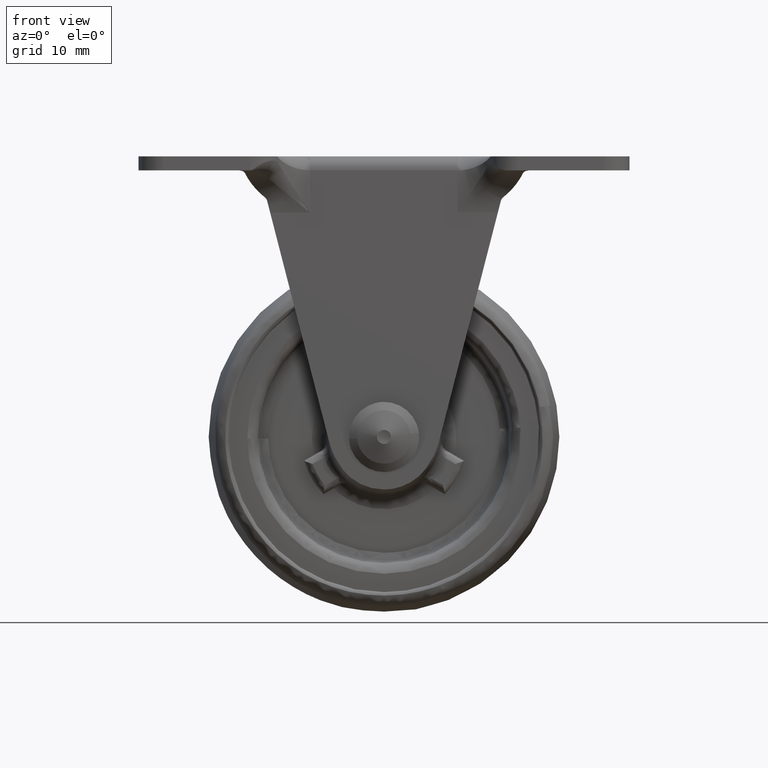
[diagram: clean part render]
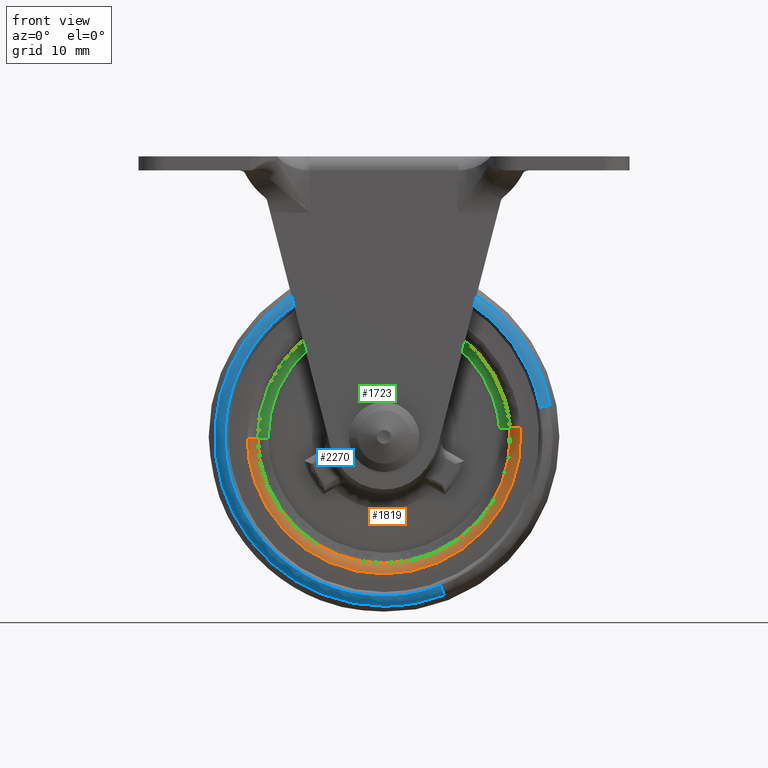
[diagram: same view with three faces highlighted in distinct colors, each labeled with its STEP entity id]
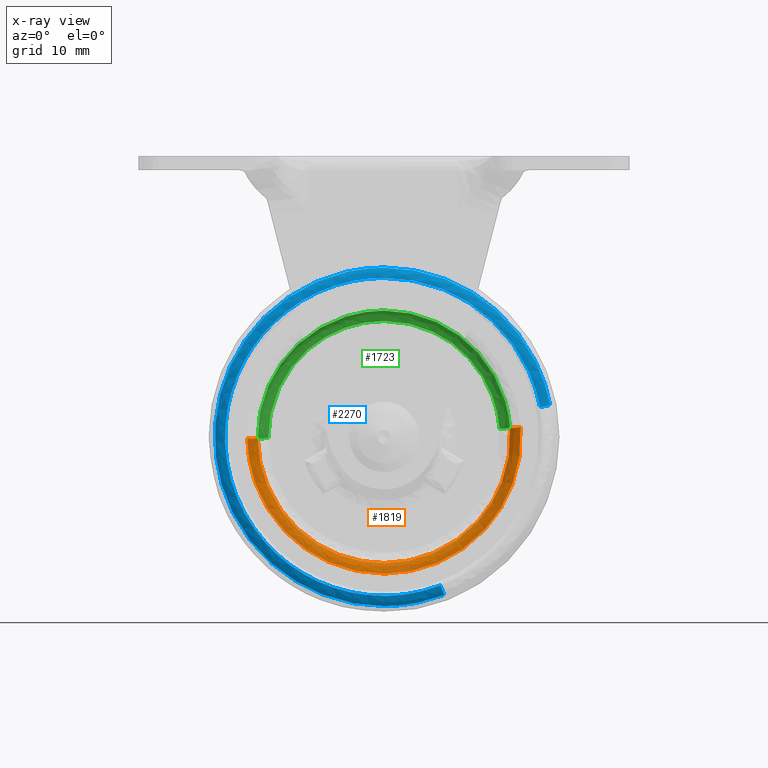
[diagram: x-ray of the same camera — body ghosted, the three highlighted faces saturated]
A machine part, front view with three faces highlighted in distinct colors.
The next image is the same camera in x-ray (body ghosted, the three faces saturated) — at least one of them is partly hidden behind the body in this view.
Their STEP definitions:

[orange] entity #1819 — the highlighted face is a freeform B-spline surface patch.
#561=CARTESIAN_POINT('',(-7.510837562892252,-8.500000000000000,-50.434197652740728));
#562=VERTEX_POINT('',#561);
#568=CARTESIAN_POINT('',(-3.033219733155585,-8.500000000381135,-37.244060625545167));
#569=VERTEX_POINT('',#568);
#570=CARTESIAN_POINT('',(-3.033219733155585,-8.500000000381135,-37.244060625545174));
#571=CARTESIAN_POINT('',(-2.989376000000002,-8.500000000000002,-37.871265039775892));
#572=CARTESIAN_POINT('',(-2.989376000000002,-8.500000000000000,-38.500000000000000));
#573=CARTESIAN_POINT('',(-2.989376000000003,-8.500000000000002,-45.323612823355205));
#574=CARTESIAN_POINT('',(-7.510837562892252,-8.500000000000000,-50.434197652740728));
#582=(BOUNDED_CURVE()B_SPLINE_CURVE(2,(#570,#571,#572,#573,#574),.UNSPECIFIED.,.F.,.U.)B_SPLINE_CURVE_WITH_KNOTS((3,2,3),(0.237833686534520,0.250000000000000,0.365779855696172),.UNSPECIFIED.)CURVE()GEOMETRIC_REPRESENTATION_ITEM()RATIONAL_B_SPLINE_CURVE((0.972879876385766,0.985746277152008,1.0,0.864355461565564,0.854350163818431))REPRESENTATION_ITEM(''));
#583=EDGE_CURVE('',#569,#562,#582,.T.);
#600=CARTESIAN_POINT('',(-39.009201956841181,-8.500000000366907,-38.726322219597343));
#601=VERTEX_POINT('',#600);
#617=CARTESIAN_POINT('',(-30.396642989575760,-8.500000000054582,-53.865079804399592));
#618=VERTEX_POINT('',#617);
#619=CARTESIAN_POINT('',(-30.396642989575760,-8.500000000054582,-53.865079804399585));
#620=CARTESIAN_POINT('',(-38.884183471675357,-8.500000000161668,-48.674453476027210));
#621=CARTESIAN_POINT('',(-39.009201956841189,-8.500000000366907,-38.726322219597336));
#629=(BOUNDED_CURVE()B_SPLINE_CURVE(2,(#619,#620,#621),.UNSPECIFIED.,.F.,.U.)B_SPLINE_CURVE_WITH_KNOTS((3,3),(0.589144092838729,0.747784295919984),.UNSPECIFIED.)CURVE()GEOMETRIC_REPRESENTATION_ITEM()RATIONAL_B_SPLINE_CURVE((0.865603215173916,0.812290197322527,0.994854295639998))REPRESENTATION_ITEM(''));
#630=EDGE_CURVE('',#618,#601,#629,.T.);
#670=CARTESIAN_POINT('',(-21.0,-8.500000000000000,-56.510623999999993));
#671=VERTEX_POINT('',#670);
#672=CARTESIAN_POINT('',(-21.0,-8.500000000000000,-56.510623999999993));
#673=CARTESIAN_POINT('',(-26.070736627435114,-8.500000000000000,-56.510623999999993));
#674=CARTESIAN_POINT('',(-30.396642989575760,-8.500000000054582,-53.865079804399585));
#682=(BOUNDED_CURVE()B_SPLINE_CURVE(2,(#672,#673,#674),.UNSPECIFIED.,.F.,.U.)B_SPLINE_CURVE_WITH_KNOTS((3,3),(0.500000000000000,0.589144092838729),.UNSPECIFIED.)CURVE()GEOMETRIC_REPRESENTATION_ITEM()RATIONAL_B_SPLINE_CURVE((1.0,0.895561198841037,0.865603215173916))REPRESENTATION_ITEM(''));
#683=EDGE_CURVE('',#671,#618,#682,.T.);
#685=CARTESIAN_POINT('',(-7.510837562892252,-8.500000000000000,-50.434197652740728));
#686=CARTESIAN_POINT('',(-12.886803149237034,-8.500000000000000,-56.510623999999993));
#687=CARTESIAN_POINT('',(-21.0,-8.500000000000000,-56.510623999999993));
#695=(BOUNDED_CURVE()B_SPLINE_CURVE(2,(#685,#686,#687),.UNSPECIFIED.,.F.,.U.)B_SPLINE_CURVE_WITH_KNOTS((3,3),(0.365779855696172,0.500000000000000),.UNSPECIFIED.)CURVE()GEOMETRIC_REPRESENTATION_ITEM()RATIONAL_B_SPLINE_CURVE((0.854350163818431,0.842751319620983,1.0))REPRESENTATION_ITEM(''));
#696=EDGE_CURVE('',#562,#671,#695,.T.);
#1724=CARTESIAN_POINT('',(-3.029597544976072,-8.395694249926269,-37.243808418860539));
#1725=CARTESIAN_POINT('',(-2.993645916312893,-8.395694249926267,-37.758113120222127));
#1726=CARTESIAN_POINT('',(-2.987167372058566,-8.395694249926269,-38.273632153731597));
#1727=CARTESIAN_POINT('',(-2.760799525790162,-8.395694249926269,-56.286464781673018));
#1728=CARTESIAN_POINT('',(-20.773632153731590,-8.395694249926269,-56.512832627941435));
#1729=CARTESIAN_POINT('',(-38.786464781673025,-8.395694249926269,-56.739200474209824));
#1730=CARTESIAN_POINT('',(-39.012832627941435,-8.395694249926269,-38.726367846268417));
#1731=CARTESIAN_POINT('',(-3.149242500409978,-10.116307876798381,-37.252172003711664));
#1732=CARTESIAN_POINT('',(-3.113530233721021,-10.116307876798382,-37.763052521155977));
#1733=CARTESIAN_POINT('',(-3.107094822899044,-10.116307876798381,-38.275139285858771));
#1734=CARTESIAN_POINT('',(-2.882234108757828,-10.116307876798379,-56.168044462959749));
#1735=CARTESIAN_POINT('',(-20.775139285858781,-10.116307876798381,-56.392905177100950));
#1736=CARTESIAN_POINT('',(-38.668044462959735,-10.116307876798379,-56.617765891242179));
#1737=CARTESIAN_POINT('',(-38.892905177100957,-10.116307876798381,-38.724860714141215));
#1738=CARTESIAN_POINT('',(-1.432817543362929,-9.996368918696017,-37.132188125437587));
#1739=CARTESIAN_POINT('',(-1.393671392939958,-9.996368918696017,-37.692191940323511));
#1740=CARTESIAN_POINT('',(-1.386617190464799,-9.996368918696016,-38.253517988184420));
#1741=CARTESIAN_POINT('',(-1.140135178649226,-9.996368918696016,-57.866900797719644));
#1742=CARTESIAN_POINT('',(-20.753517988184424,-9.996368918696016,-58.113382809535203));
#1743=CARTESIAN_POINT('',(-40.366900797719630,-9.996368918696016,-58.359864821350783));
#1744=CARTESIAN_POINT('',(-40.613382809535196,-9.996368918696016,-38.746482011815573));
#1752=(BOUNDED_SURFACE()B_SPLINE_SURFACE(2,2,((#1724,#1731,#1738),(#1725,#1732,#1739),(#1726,#1733,#1740),(#1727,#1734,#1741),(#1728,#1735,#1742),(#1729,#1736,#1743),(#1730,#1737,#1744)),.UNSPECIFIED.,.F.,.F.,.U.)B_SPLINE_SURFACE_WITH_KNOTS((3,2,2,3),(3,3),(0.0,1.299962066092173,33.799044711936929,66.298127357781695),(0.0,2.733563221600292),.UNSPECIFIED.)GEOMETRIC_REPRESENTATION_ITEM()RATIONAL_B_SPLINE_SURFACE(((0.889999323339372,0.584039502812575,0.889999803505947),(0.899812894621237,0.590479410284382,0.899813380082366),(0.910479819043024,0.597479309129770,0.910480310259102),(0.643806454178823,0.422481671104314,0.643806801521042),(0.910479819043024,0.597479309129770,0.910480310259102),(0.643806454178823,0.422481671104314,0.643806801521042),(0.910479819043024,0.597479309129770,0.910480310259102)))REPRESENTATION_ITEM('')SURFACE());
#1753=ORIENTED_EDGE('',*,*,#583,.T.);
#1754=ORIENTED_EDGE('',*,*,#696,.T.);
#1755=ORIENTED_EDGE('',*,*,#683,.T.);
#1756=ORIENTED_EDGE('',*,*,#630,.T.);
#1757=CARTESIAN_POINT('',(-40.509083518492723,-10.0,-38.745171279673229));
#1758=VERTEX_POINT('',#1757);
#1759=CARTESIAN_POINT('',(-39.009201956841174,-8.500000000366907,-38.726322219597343));
#1760=CARTESIAN_POINT('',(-39.009201957576060,-9.999999990698637,-38.726322219517279));
#1761=CARTESIAN_POINT('',(-40.509083518492723,-9.999999999999998,-38.745171279673229));
#1769=(BOUNDED_CURVE()B_SPLINE_CURVE(2,(#1759,#1760,#1761),.UNSPECIFIED.,.F.,.U.)B_SPLINE_CURVE_WITH_KNOTS((3,3),(-1.725134642780132,-0.274865363077188),.UNSPECIFIED.)CURVE()GEOMETRIC_REPRESENTATION_ITEM()RATIONAL_B_SPLINE_CURVE((0.883342149474061,0.624617225351512,0.883342147384195))REPRESENTATION_ITEM(''));
#1770=EDGE_CURVE('',#601,#1758,#1769,.T.);
#1771=ORIENTED_EDGE('',*,*,#1770,.T.);
#1772=CARTESIAN_POINT('',(-21.0,-10.0,-58.010624000000000));
#1773=VERTEX_POINT('',#1772);
#1774=CARTESIAN_POINT('',(-21.0,-10.0,-58.010624000000000));
#1775=CARTESIAN_POINT('',(-40.266973959148579,-10.0,-58.010624000000021));
#1776=CARTESIAN_POINT('',(-40.509083518492716,-9.999999999999998,-38.745171279673229));
#1784=(BOUNDED_CURVE()B_SPLINE_CURVE(2,(#1774,#1775,#1776),.UNSPECIFIED.,.F.,.U.)B_SPLINE_CURVE_WITH_KNOTS((3,3),(0.500000000000000,0.747784295914542),.UNSPECIFIED.)CURVE()GEOMETRIC_REPRESENTATION_ITEM()RATIONAL_B_SPLINE_CURVE((1.0,0.709702639992660,0.994854295627472))REPRESENTATION_ITEM(''));
#1785=EDGE_CURVE('',#1773,#1758,#1784,.T.);
#1786=ORIENTED_EDGE('',*,*,#1785,.F.);
#1787=CARTESIAN_POINT('',(-1.536871228737956,-10.0,-37.139460748194082));
#1788=VERTEX_POINT('',#1787);
#1789=CARTESIAN_POINT('',(-1.536871228737955,-10.0,-37.139460748194075));
#1790=CARTESIAN_POINT('',(-1.489376000000000,-10.0,-37.818901365533016));
#1791=CARTESIAN_POINT('',(-1.489376000000001,-10.0,-38.500000000000000));
#1792=CARTESIAN_POINT('',(-1.489376000000001,-10.000000000000002,-58.010624000000007));
#1793=CARTESIAN_POINT('',(-21.0,-10.0,-58.010624000000000));
#1801=(BOUNDED_CURVE()B_SPLINE_CURVE(2,(#1789,#1790,#1791,#1792,#1793),.UNSPECIFIED.,.F.,.U.)B_SPLINE_CURVE_WITH_KNOTS((3,2,3),(0.237833686526981,0.250000000000000,0.500000000000000),.UNSPECIFIED.)CURVE()GEOMETRIC_REPRESENTATION_ITEM()RATIONAL_B_SPLINE_CURVE((0.972879876369821,0.985746277143176,1.0,0.707106781186548,1.0))REPRESENTATION_ITEM(''));
#1802=EDGE_CURVE('',#1788,#1773,#1801,.T.);
#1803=ORIENTED_EDGE('',*,*,#1802,.F.);
#1804=CARTESIAN_POINT('',(-3.033219733155585,-8.500000000381135,-37.244060625545181));
#1805=CARTESIAN_POINT('',(-3.033219732392928,-9.999999987343159,-37.244060625524149));
#1806=CARTESIAN_POINT('',(-1.536871228737957,-10.0,-37.139460748194075));
#1814=(BOUNDED_CURVE()B_SPLINE_CURVE(2,(#1804,#1805,#1806),.UNSPECIFIED.,.F.,.U.)B_SPLINE_CURVE_WITH_KNOTS((3,3),(-1.725134642760678,-0.274865365371205),.UNSPECIFIED.)CURVE()GEOMETRIC_REPRESENTATION_ITEM()RATIONAL_B_SPLINE_CURVE((0.863472075190946,0.610566961461094,0.863472072354790))REPRESENTATION_ITEM(''));
#1815=EDGE_CURVE('',#569,#1788,#1814,.T.);
#1816=ORIENTED_EDGE('',*,*,#1815,.F.);
#1817=EDGE_LOOP('',(#1753,#1754,#1755,#1756,#1771,#1786,#1803,#1816));
#1818=FACE_OUTER_BOUND('',#1817,.T.);
#1819=ADVANCED_FACE('',(#1818),#1752,.T.);

[blue] entity #2270 — the highlighted face is a freeform B-spline surface patch.
#2094=CARTESIAN_POINT('',(-12.968541996006326,-10.497035558605386,-59.585577770156263));
#2095=CARTESIAN_POINT('',(-14.822885797731116,-10.497035558605392,-60.291893932362555));
#2096=CARTESIAN_POINT('',(-16.772045063822087,-10.497035558605390,-60.663715948118245));
#2097=CARTESIAN_POINT('',(-38.935761011940343,-10.497035558605392,-64.891670884296161));
#2098=CARTESIAN_POINT('',(-43.163715948118245,-10.497035558605390,-42.727954936177902));
#2099=CARTESIAN_POINT('',(-47.391670884296147,-10.497035558605392,-20.564238988059667));
#2100=CARTESIAN_POINT('',(-25.227954936177909,-10.497035558605390,-16.336284051881744));
#2101=CARTESIAN_POINT('',(-3.064238988059663,-10.497035558605392,-12.108329115703837));
#2102=CARTESIAN_POINT('',(1.163715948118252,-10.497035558605390,-34.272045063822084));
#2103=CARTESIAN_POINT('',(-12.467036922219162,-10.585745087504028,-60.902215948455783));
#2104=CARTESIAN_POINT('',(-14.437170761649231,-10.585745087504034,-61.652636324226791));
#2105=CARTESIAN_POINT('',(-16.508040589020329,-10.585745087504030,-62.047675871264417));
#2106=CARTESIAN_POINT('',(-40.055716460284756,-10.585745087504030,-66.539635282244106));
#2107=CARTESIAN_POINT('',(-44.547675871264431,-10.585745087504030,-42.991959410979661));
#2108=CARTESIAN_POINT('',(-49.039635282244092,-10.585745087504030,-19.444283539715240));
#2109=CARTESIAN_POINT('',(-25.491959410979671,-10.585745087504030,-14.952324128735565));
#2110=CARTESIAN_POINT('',(-1.944283539715240,-10.585745087504030,-10.460364717755899));
#2111=CARTESIAN_POINT('',(2.547675871264429,-10.585745087504030,-34.008040589020318));
#2112=CARTESIAN_POINT('',(-12.405131418765544,-9.184793225008852,-61.064741022585892));
#2113=CARTESIAN_POINT('',(-14.389558315143029,-9.184793225008853,-61.820605597604050));
#2114=CARTESIAN_POINT('',(-16.475452025552393,-9.184793225008855,-62.218511103608186));
#2115=CARTESIAN_POINT('',(-40.193963129160544,-9.184793225008855,-66.743059078055779));
#2116=CARTESIAN_POINT('',(-44.718511103608179,-9.184793225008855,-43.024547974447636));
#2117=CARTESIAN_POINT('',(-49.243059078055786,-9.184793225008855,-19.306036870839449));
#2118=CARTESIAN_POINT('',(-25.524547974447618,-9.184793225008855,-14.781488896391837));
#2119=CARTESIAN_POINT('',(-1.806036870839452,-9.184793225008855,-10.256940921944215));
#2120=CARTESIAN_POINT('',(2.718511103608167,-9.184793225008855,-33.975452025552393));
#2128=(BOUNDED_SURFACE()B_SPLINE_SURFACE(2,2,((#2094,#2103,#2112),(#2095,#2104,#2113),(#2096,#2105,#2114),(#2097,#2106,#2115),(#2098,#2107,#2116),(#2099,#2108,#2117),(#2100,#2109,#2118),(#2101,#2110,#2119),(#2102,#2111,#2120)),.UNSPECIFIED.,.F.,.F.,.U.)B_SPLINE_SURFACE_WITH_KNOTS((3,2,2,2,3),(3,3),(0.0,4.800804865202819,44.807550228631847,84.814295592060873,124.821040955489910),(0.0,2.379387689912007),.UNSPECIFIED.)GEOMETRIC_REPRESENTATION_ITEM()RATIONAL_B_SPLINE_SURFACE(((0.861490946899471,0.626050223730783,0.857924798951173),(0.886020321281953,0.643875855416638,0.882352633812616),(0.918295804170387,0.667330626887012,0.914494512108341),(0.649333190264034,0.471874011565276,0.646645270869691),(0.918295804170387,0.667330626887012,0.914494512108341),(0.649333190264034,0.471874011565276,0.646645270869691),(0.918295804170387,0.667330626887012,0.914494512108341),(0.649333190264034,0.471874011565276,0.646645270869691),(0.918295804170387,0.667330626887012,0.914494512108341)))REPRESENTATION_ITEM('')SURFACE());
#2129=CARTESIAN_POINT('',(-12.934987164540789,-10.500000000000000,-59.673660756502528));
#2130=VERTEX_POINT('',#2129);
#2131=CARTESIAN_POINT('',(-21.0,-10.500000000000000,-61.157633176648652));
#2132=VERTEX_POINT('',#2131);
#2133=CARTESIAN_POINT('',(-12.934987164540782,-10.500000000000000,-59.673660756502528));
#2134=CARTESIAN_POINT('',(-16.830967194072262,-10.500000000000000,-61.157633176648652));
#2135=CARTESIAN_POINT('',(-21.0,-10.500000000000000,-61.157633176648652));
#2143=(BOUNDED_CURVE()B_SPLINE_CURVE(2,(#2133,#2134,#2135),.UNSPECIFIED.,.F.,.U.)B_SPLINE_CURVE_WITH_KNOTS((3,3),(0.439552769331734,0.500000000000000),.UNSPECIFIED.)CURVE()GEOMETRIC_REPRESENTATION_ITEM()RATIONAL_B_SPLINE_CURVE((0.892609506583859,0.929181664164849,1.0))REPRESENTATION_ITEM(''));
#2144=EDGE_CURVE('',#2130,#2132,#2143,.T.);
#2145=ORIENTED_EDGE('',*,*,#2144,.T.);
#2146=CARTESIAN_POINT('',(-21.0,-10.500000000000000,-15.842366823351350));
#2147=VERTEX_POINT('',#2146);
#2148=CARTESIAN_POINT('',(-21.0,-10.500000000000000,-61.157633176648652));
#2149=CARTESIAN_POINT('',(-43.657633176648645,-10.500000000000000,-61.157633176648659));
#2150=CARTESIAN_POINT('',(-43.657633176648652,-10.500000000000000,-38.500000000000000));
#2151=CARTESIAN_POINT('',(-43.657633176648645,-10.500000000000000,-15.842366823351348));
#2152=CARTESIAN_POINT('',(-21.0,-10.500000000000000,-15.842366823351350));
#2160=(BOUNDED_CURVE()B_SPLINE_CURVE(2,(#2148,#2149,#2150,#2151,#2152),.UNSPECIFIED.,.F.,.U.)B_SPLINE_CURVE_WITH_KNOTS((3,2,3),(0.500000000000000,0.750000000000000,1.0),.UNSPECIFIED.)CURVE()GEOMETRIC_REPRESENTATION_ITEM()RATIONAL_B_SPLINE_CURVE((1.0,0.707106781186547,1.0,0.707106781186547,1.0))REPRESENTATION_ITEM(''));
#2161=EDGE_CURVE('',#2132,#2147,#2160,.T.);
#2162=ORIENTED_EDGE('',*,*,#2161,.T.);
#2163=CARTESIAN_POINT('',(1.256304206989366,-10.500000000000000,-34.254382908692151));
#2164=VERTEX_POINT('',#2163);
#2165=CARTESIAN_POINT('',(-21.0,-10.500000000000000,-15.842366823351350));
#2166=CARTESIAN_POINT('',(-2.255975711062619,-10.500000000000000,-15.842366823351353));
#2167=CARTESIAN_POINT('',(1.256304206989366,-10.500000000000000,-34.254382908692158));
#2175=(BOUNDED_CURVE()B_SPLINE_CURVE(2,(#2165,#2166,#2167),.UNSPECIFIED.,.F.,.U.)B_SPLINE_CURVE_WITH_KNOTS((3,3),(0.0,0.217838633738390),.UNSPECIFIED.)CURVE()GEOMETRIC_REPRESENTATION_ITEM()RATIONAL_B_SPLINE_CURVE((1.0,0.744786165529753,0.934335795156579))REPRESENTATION_ITEM(''));
#2176=EDGE_CURVE('',#2147,#2164,#2175,.T.);
#2177=ORIENTED_EDGE('',*,*,#2176,.T.);
#2178=CARTESIAN_POINT('',(2.704144299987846,-9.278345833771562,-33.978192639888242));
#2179=VERTEX_POINT('',#2178);
#2180=CARTESIAN_POINT('',(1.256304206989366,-10.500000000000000,-34.254382908692151));
#2181=CARTESIAN_POINT('',(2.477529428166577,-10.499999990032194,-34.021421738690606));
#2182=CARTESIAN_POINT('',(2.704144299987847,-9.278345833771562,-33.978192639888242));
#2190=(BOUNDED_CURVE()B_SPLINE_CURVE(2,(#2180,#2181,#2182),.UNSPECIFIED.,.F.,.U.)B_SPLINE_CURVE_WITH_KNOTS((3,3),(-1.709144376273418,-0.302665434378442),.UNSPECIFIED.)CURVE()GEOMETRIC_REPRESENTATION_ITEM()RATIONAL_B_SPLINE_CURVE((0.896528472069382,0.688925988902342,0.893071142223600))REPRESENTATION_ITEM(''));
#2191=EDGE_CURVE('',#2164,#2179,#2190,.T.);
#2192=ORIENTED_EDGE('',*,*,#2191,.T.);
#2193=CARTESIAN_POINT('',(-21.0,-9.278350515463950,-14.368419405516850));
#2194=VERTEX_POINT('',#2193);
#2195=CARTESIAN_POINT('',(-21.0,-9.278350515463950,-14.368419405516850));
#2196=CARTESIAN_POINT('',(-1.036621108931050,-9.278350515463952,-14.368419405516846));
#2197=CARTESIAN_POINT('',(2.704144299987847,-9.278345833771562,-33.978192639888242));
#2205=(BOUNDED_CURVE()B_SPLINE_CURVE(2,(#2195,#2196,#2197),.UNSPECIFIED.,.F.,.U.)B_SPLINE_CURVE_WITH_KNOTS((3,3),(0.0,0.217838627671831),.UNSPECIFIED.)CURVE()GEOMETRIC_REPRESENTATION_ITEM()RATIONAL_B_SPLINE_CURVE((1.0,0.744786172637169,0.934335784599095))REPRESENTATION_ITEM(''));
#2206=EDGE_CURVE('',#2194,#2179,#2205,.T.);
#2207=ORIENTED_EDGE('',*,*,#2206,.F.);
#2208=CARTESIAN_POINT('',(-44.970182621208451,-9.278356398691638,-41.286301037395653));
#2209=VERTEX_POINT('',#2208);
#2210=CARTESIAN_POINT('',(-44.970182621208458,-9.278356398691638,-41.286301037395646));
#2211=CARTESIAN_POINT('',(-45.131579519323942,-9.278356246957536,-39.897824925551255));
#2212=CARTESIAN_POINT('',(-45.131579551287693,-9.278356076564160,-38.499999878738663));
#2213=CARTESIAN_POINT('',(-45.131580103099040,-9.278353134950315,-14.368419348398209));
#2214=CARTESIAN_POINT('',(-21.0,-9.278350515463950,-14.368419405516850));
#2222=(BOUNDED_CURVE()B_SPLINE_CURVE(2,(#2210,#2211,#2212,#2213,#2214),.UNSPECIFIED.,.F.,.U.)B_SPLINE_CURVE_WITH_KNOTS((3,2,3),(0.730000234219295,0.750000000000000,1.0),.UNSPECIFIED.)CURVE()GEOMETRIC_REPRESENTATION_ITEM()RATIONAL_B_SPLINE_CURVE((0.956886579191528,0.976568816899897,1.0,0.707106781186548,1.0))REPRESENTATION_ITEM(''));
#2223=EDGE_CURVE('',#2209,#2194,#2222,.T.);
#2224=ORIENTED_EDGE('',*,*,#2223,.F.);
#2225=CARTESIAN_POINT('',(-21.0,-9.278338752500490,-62.631582815880307));
#2226=VERTEX_POINT('',#2225);
#2227=CARTESIAN_POINT('',(-21.0,-9.278338752500490,-62.631582815880307));
#2228=CARTESIAN_POINT('',(-42.489001650299606,-9.278347575596063,-62.631581641039027));
#2229=CARTESIAN_POINT('',(-44.970182621208451,-9.278356398691638,-41.286301037395646));
#2237=(BOUNDED_CURVE()B_SPLINE_CURVE(2,(#2227,#2228,#2229),.UNSPECIFIED.,.F.,.U.)B_SPLINE_CURVE_WITH_KNOTS((3,3),(0.500000000000000,0.730000234219295),.UNSPECIFIED.)CURVE()GEOMETRIC_REPRESENTATION_ITEM()RATIONAL_B_SPLINE_CURVE((1.0,0.730537964286651,0.956886579191528))REPRESENTATION_ITEM(''));
#2238=EDGE_CURVE('',#2226,#2209,#2237,.T.);
#2239=ORIENTED_EDGE('',*,*,#2238,.F.);
#2240=CARTESIAN_POINT('',(-12.410333007028539,-9.278339150552130,-61.051073214474293));
#2241=VERTEX_POINT('',#2240);
#2242=CARTESIAN_POINT('',(-12.410333007028550,-9.278339150552130,-61.051073214474286));
#2243=CARTESIAN_POINT('',(-16.559758633090379,-9.278338752500490,-62.631582815880321));
#2244=CARTESIAN_POINT('',(-21.0,-9.278338752500490,-62.631582815880307));
#2252=(BOUNDED_CURVE()B_SPLINE_CURVE(2,(#2242,#2243,#2244),.UNSPECIFIED.,.F.,.U.)B_SPLINE_CURVE_WITH_KNOTS((3,3),(0.439552764335123,0.500000000000000),.UNSPECIFIED.)CURVE()GEOMETRIC_REPRESENTATION_ITEM()RATIONAL_B_SPLINE_CURVE((0.892609500537698,0.929181658310955,1.0))REPRESENTATION_ITEM(''));
#2253=EDGE_CURVE('',#2241,#2226,#2252,.T.);
#2254=ORIENTED_EDGE('',*,*,#2253,.F.);
#2255=CARTESIAN_POINT('',(-12.934987164540789,-10.500000000000000,-59.673660756502542));
#2256=CARTESIAN_POINT('',(-12.492449942070820,-10.499999974393150,-60.835485693354713));
#2257=CARTESIAN_POINT('',(-12.410333007028548,-9.278339150552130,-61.051073214474293));
#2265=(BOUNDED_CURVE()B_SPLINE_CURVE(2,(#2255,#2256,#2257),.UNSPECIFIED.,.F.,.U.)B_SPLINE_CURVE_WITH_KNOTS((3,3),(-1.709144362384181,-0.302660383875519),.UNSPECIFIED.)CURVE()GEOMETRIC_REPRESENTATION_ITEM()RATIONAL_B_SPLINE_CURVE((0.841070070602978,0.646308985744216,0.837827987171204))REPRESENTATION_ITEM(''));
#2266=EDGE_CURVE('',#2130,#2241,#2265,.T.);
#2267=ORIENTED_EDGE('',*,*,#2266,.F.);
#2268=EDGE_LOOP('',(#2145,#2162,#2177,#2192,#2207,#2224,#2239,#2254,#2267));
#2269=FACE_OUTER_BOUND('',#2268,.T.);
#2270=ADVANCED_FACE('',(#2269),#2128,.T.);

[green] entity #1723 — the highlighted face is a freeform B-spline surface patch.
#497=CARTESIAN_POINT('',(-39.009201956841203,-6.999999999355442,-38.726322219596241));
#498=VERTEX_POINT('',#497);
#512=CARTESIAN_POINT('',(-21.0,-7.0,-20.489376000000000));
#513=VERTEX_POINT('',#512);
#514=CARTESIAN_POINT('',(-39.009201956841210,-6.999999999355442,-38.726322219596241));
#515=CARTESIAN_POINT('',(-39.010624000000000,-7.000000000000001,-38.613165577381345));
#516=CARTESIAN_POINT('',(-39.010624000000000,-7.0,-38.500000000000000));
#517=CARTESIAN_POINT('',(-39.010624000000000,-6.999999999999999,-20.489376000000000));
#518=CARTESIAN_POINT('',(-21.0,-7.0,-20.489376000000000));
#526=(BOUNDED_CURVE()B_SPLINE_CURVE(2,(#514,#515,#516,#517,#518),.UNSPECIFIED.,.F.,.U.)B_SPLINE_CURVE_WITH_KNOTS((3,2,3),(0.747784295920006,0.750000000000000,1.0),.UNSPECIFIED.)CURVE()GEOMETRIC_REPRESENTATION_ITEM()RATIONAL_B_SPLINE_CURVE((0.994854295640049,0.997404141200290,1.0,0.707106781186548,1.0))REPRESENTATION_ITEM(''));
#527=EDGE_CURVE('',#498,#513,#526,.T.);
#529=CARTESIAN_POINT('',(-3.033219733155509,-6.999999999372770,-37.244060625546247));
#530=VERTEX_POINT('',#529);
#531=CARTESIAN_POINT('',(-21.0,-7.0,-20.489376000000000));
#532=CARTESIAN_POINT('',(-4.204429477793695,-7.000000000000001,-20.489376000000004));
#533=CARTESIAN_POINT('',(-3.033219733155509,-6.999999999372770,-37.244060625546254));
#541=(BOUNDED_CURVE()B_SPLINE_CURVE(2,(#531,#532,#533),.UNSPECIFIED.,.F.,.U.)B_SPLINE_CURVE_WITH_KNOTS((3,3),(0.0,0.237833686534540),.UNSPECIFIED.)CURVE()GEOMETRIC_REPRESENTATION_ITEM()RATIONAL_B_SPLINE_CURVE((1.0,0.721360504034516,0.972879876385809))REPRESENTATION_ITEM(''));
#542=EDGE_CURVE('',#513,#530,#541,.T.);
#1597=CARTESIAN_POINT('',(-4.529568240305917,-5.500000000000000,-37.348660502513098));
#1598=VERTEX_POINT('',#1597);
#1616=CARTESIAN_POINT('',(-37.509320398038277,-5.500000000000000,-38.707473160217631));
#1617=VERTEX_POINT('',#1616);
#1631=CARTESIAN_POINT('',(-39.009201956841196,-6.999999999355442,-38.726322219596241));
#1632=CARTESIAN_POINT('',(-39.009201955553294,-5.500000015015631,-38.726322219491855));
#1633=CARTESIAN_POINT('',(-37.509320398038284,-5.500000000000001,-38.707473160217639));
#1641=(BOUNDED_CURVE()B_SPLINE_CURVE(2,(#1631,#1632,#1633),.UNSPECIFIED.,.F.,.U.)B_SPLINE_CURVE_WITH_KNOTS((3,3),(-1.725134642400493,-0.274865366983825),.UNSPECIFIED.)CURVE()GEOMETRIC_REPRESENTATION_ITEM()RATIONAL_B_SPLINE_CURVE((0.883342149338608,0.624617226116174,0.883342145990324))REPRESENTATION_ITEM(''));
#1642=EDGE_CURVE('',#498,#1617,#1641,.T.);
#1648=CARTESIAN_POINT('',(-3.033219733155510,-6.999999999372770,-37.244060625546254));
#1649=CARTESIAN_POINT('',(-3.033219734404745,-5.500000007258177,-37.244060625664780));
#1650=CARTESIAN_POINT('',(-4.529568240305917,-5.500000000000000,-37.348660502513098));
#1658=(BOUNDED_CURVE()B_SPLINE_CURVE(2,(#1648,#1649,#1650),.UNSPECIFIED.,.F.,.U.)B_SPLINE_CURVE_WITH_KNOTS((3,3),(-1.725134642424187,-0.274865361680336),.UNSPECIFIED.)CURVE()GEOMETRIC_REPRESENTATION_ITEM()RATIONAL_B_SPLINE_CURVE((0.863472075073588,0.610566960876141,0.863472073642054))REPRESENTATION_ITEM(''));
#1659=EDGE_CURVE('',#530,#1598,#1658,.T.);
#1664=CARTESIAN_POINT('',(-39.005571285890063,-7.104305747966322,-38.726276592749592));
#1665=CARTESIAN_POINT('',(-39.231847878639634,-7.104305747966319,-20.720705306859514));
#1666=CARTESIAN_POINT('',(-21.226276592749585,-7.104305747966322,-20.494428714109933));
#1667=CARTESIAN_POINT('',(-4.222653411540658,-7.104305747966321,-20.280743635377846));
#1668=CARTESIAN_POINT('',(-3.036841851855572,-7.104305747966322,-37.244313824059695));
#1669=CARTESIAN_POINT('',(-39.125498730552017,-5.383692174805835,-38.727783724799117));
#1670=CARTESIAN_POINT('',(-39.353282455351149,-5.383692174805835,-20.602284994247110));
#1671=CARTESIAN_POINT('',(-21.227783724799124,-5.383692174805835,-20.374501269447983));
#1672=CARTESIAN_POINT('',(-4.110906648685176,-5.383692174805834,-20.159392925380523));
#1673=CARTESIAN_POINT('',(-2.917196903047221,-5.383692174805835,-37.235950233036291));
#1674=CARTESIAN_POINT('',(-37.405021148443723,-5.503631078216114,-38.706162427757214));
#1675=CARTESIAN_POINT('',(-37.611183576200922,-5.503631078216113,-22.301141279313505));
#1676=CARTESIAN_POINT('',(-21.206162427757214,-5.503631078216114,-22.094978851556281));
#1677=CARTESIAN_POINT('',(-5.714024274579409,-5.503631078216114,-21.900288653725472));
#1678=CARTESIAN_POINT('',(-4.633621803265031,-5.503631078216114,-37.355934202529198));
#1686=(BOUNDED_SURFACE()B_SPLINE_SURFACE(2,2,((#1664,#1669,#1674),(#1665,#1670,#1675),(#1666,#1671,#1676),(#1667,#1672,#1677),(#1668,#1673,#1678)),.UNSPECIFIED.,.F.,.F.,.U.)B_SPLINE_SURFACE_WITH_KNOTS((3,2,3),(3,3),(0.0,29.834962942818208,58.476527367923687),(0.0,2.733563165426976),.UNSPECIFIED.)GEOMETRIC_REPRESENTATION_ITEM()RATIONAL_B_SPLINE_SURFACE(((0.910479818458828,0.597479315561772,0.910480297979275),(0.643806453765734,0.422481675652426,0.643806792837894),(0.910479818458828,0.597479315561772,0.910480297979275),(0.654473388353458,0.429481581248800,0.654473733043549),(0.889999304050398,0.584039496816734,0.889999772784417)))REPRESENTATION_ITEM('')SURFACE());
#1687=CARTESIAN_POINT('',(-21.0,-5.500000000000000,-21.989376000000000));
#1688=VERTEX_POINT('',#1687);
#1689=CARTESIAN_POINT('',(-21.0,-5.500000000000000,-21.989376000000000));
#1690=CARTESIAN_POINT('',(-5.603234748962091,-5.500000000000000,-21.989375999999996));
#1691=CARTESIAN_POINT('',(-4.529568240305918,-5.500000000000000,-37.348660502513098));
#1699=(BOUNDED_CURVE()B_SPLINE_CURVE(2,(#1689,#1690,#1691),.UNSPECIFIED.,.F.,.U.)B_SPLINE_CURVE_WITH_KNOTS((3,3),(0.0,0.237833686531495),.UNSPECIFIED.)CURVE()GEOMETRIC_REPRESENTATION_ITEM()RATIONAL_B_SPLINE_CURVE((1.0,0.721360504038084,0.972879876379367))REPRESENTATION_ITEM(''));
#1700=EDGE_CURVE('',#1688,#1598,#1699,.T.);
#1701=ORIENTED_EDGE('',*,*,#1700,.T.);
#1702=ORIENTED_EDGE('',*,*,#1659,.F.);
#1703=ORIENTED_EDGE('',*,*,#542,.F.);
#1704=ORIENTED_EDGE('',*,*,#527,.F.);
#1705=ORIENTED_EDGE('',*,*,#1642,.T.);
#1706=CARTESIAN_POINT('',(-37.509320398038291,-5.500000000000000,-38.707473160217631));
#1707=CARTESIAN_POINT('',(-37.510624000000007,-5.500000000000000,-38.603740675745620));
#1708=CARTESIAN_POINT('',(-37.510624000000007,-5.500000000000000,-38.500000000000000));
#1709=CARTESIAN_POINT('',(-37.510624000000000,-5.500000000000001,-21.989375999999996));
#1710=CARTESIAN_POINT('',(-21.0,-5.500000000000000,-21.989376000000000));
#1718=(BOUNDED_CURVE()B_SPLINE_CURVE(2,(#1706,#1707,#1708,#1709,#1710),.UNSPECIFIED.,.F.,.U.)B_SPLINE_CURVE_WITH_KNOTS((3,2,3),(0.747784295912349,0.750000000000000,1.0),.UNSPECIFIED.)CURVE()GEOMETRIC_REPRESENTATION_ITEM()RATIONAL_B_SPLINE_CURVE((0.994854295622424,0.997404141191319,1.0,0.707106781186548,1.0))REPRESENTATION_ITEM(''));
#1719=EDGE_CURVE('',#1617,#1688,#1718,.T.);
#1720=ORIENTED_EDGE('',*,*,#1719,.T.);
#1721=EDGE_LOOP('',(#1701,#1702,#1703,#1704,#1705,#1720));
#1722=FACE_OUTER_BOUND('',#1721,.T.);
#1723=ADVANCED_FACE('',(#1722),#1686,.F.);